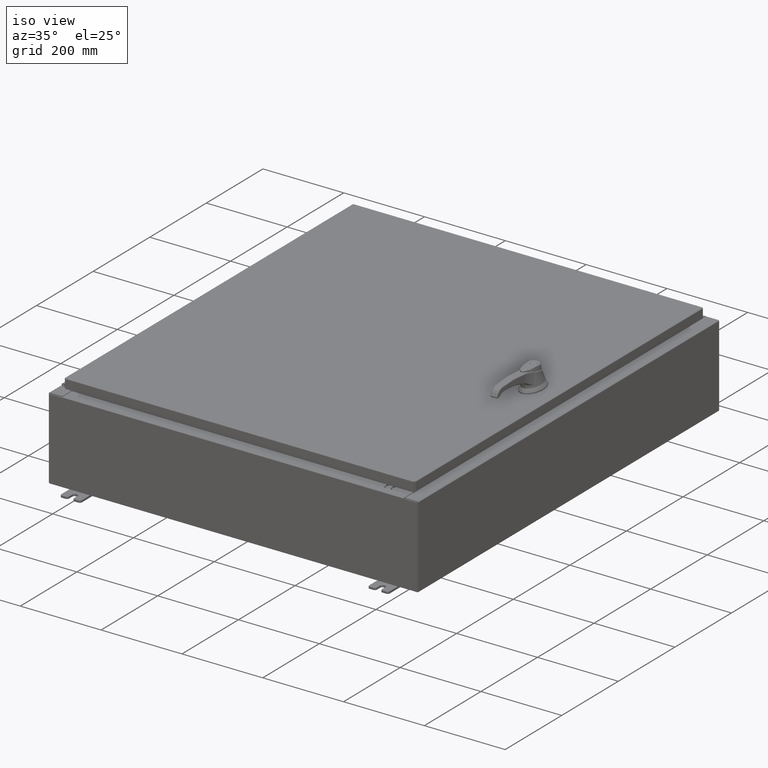
[diagram: clean part render]
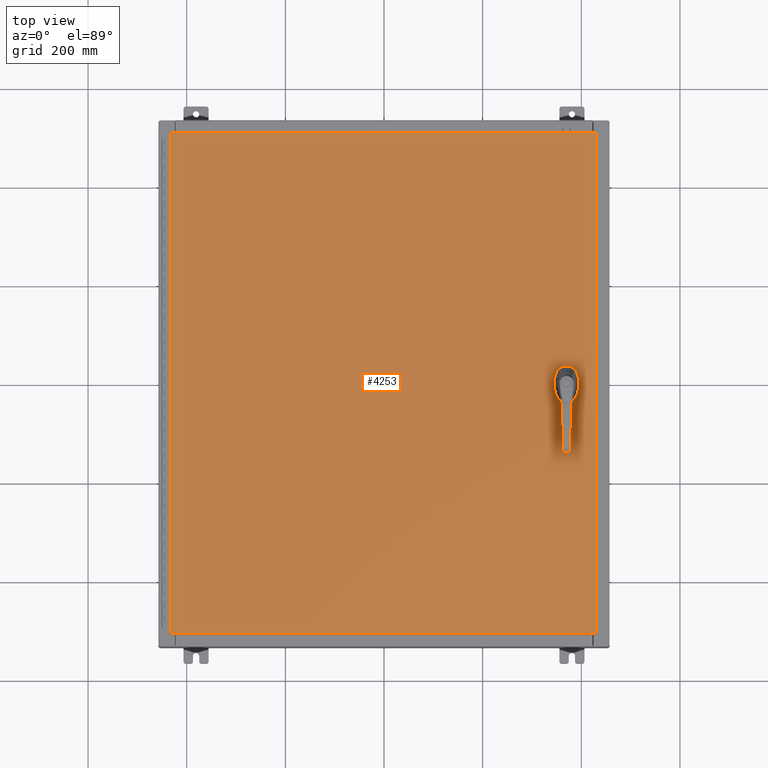
[diagram: tour spotlight — one face highlighted and labeled with its STEP entity id]
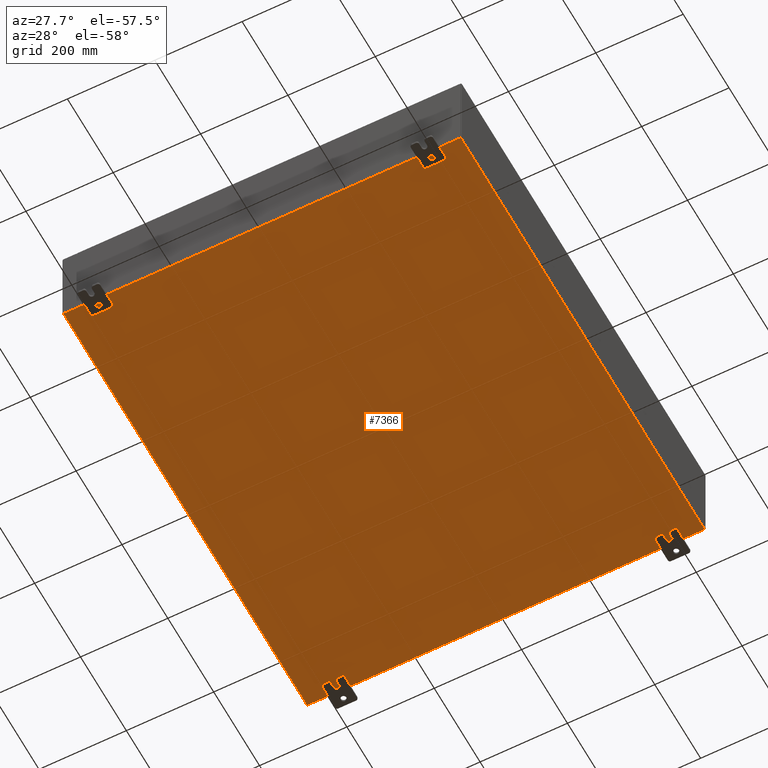
[diagram: tour spotlight — one face highlighted and labeled with its STEP entity id]
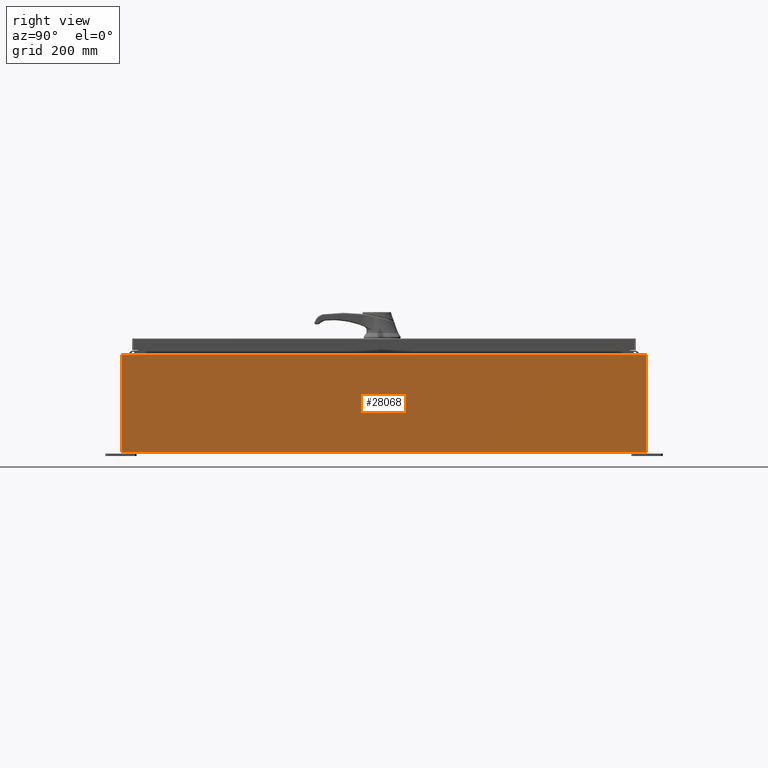
[diagram: tour spotlight — one face highlighted and labeled with its STEP entity id]
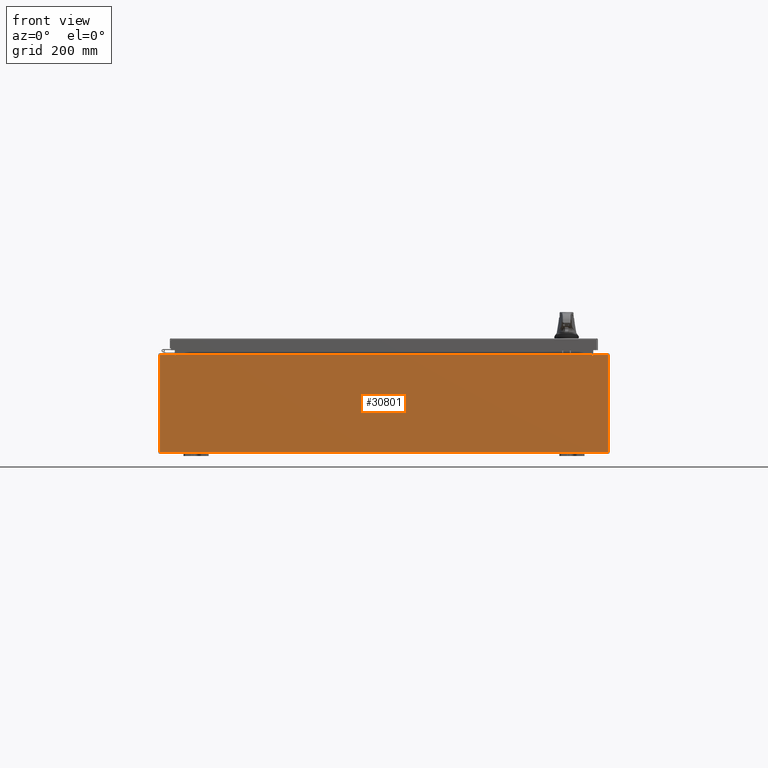
[diagram: tour spotlight — one face highlighted and labeled with its STEP entity id]
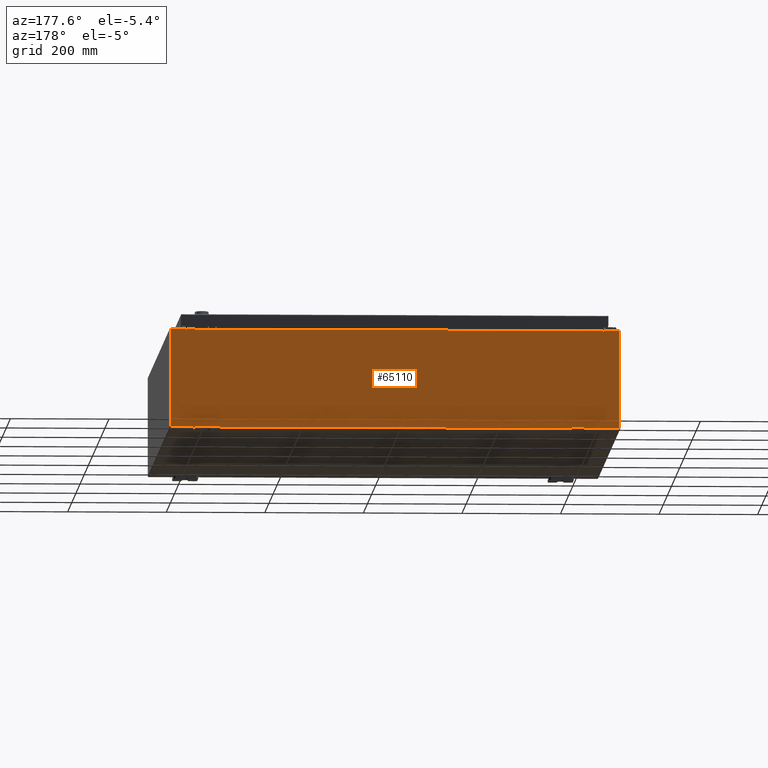
[diagram: tour spotlight — one face highlighted and labeled with its STEP entity id]
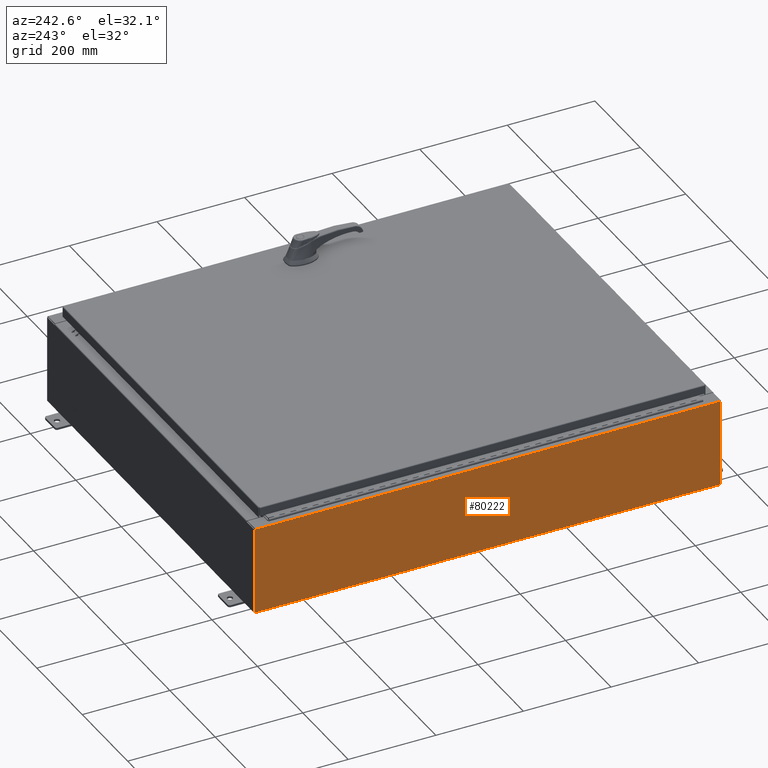
[diagram: tour spotlight — one face highlighted and labeled with its STEP entity id]
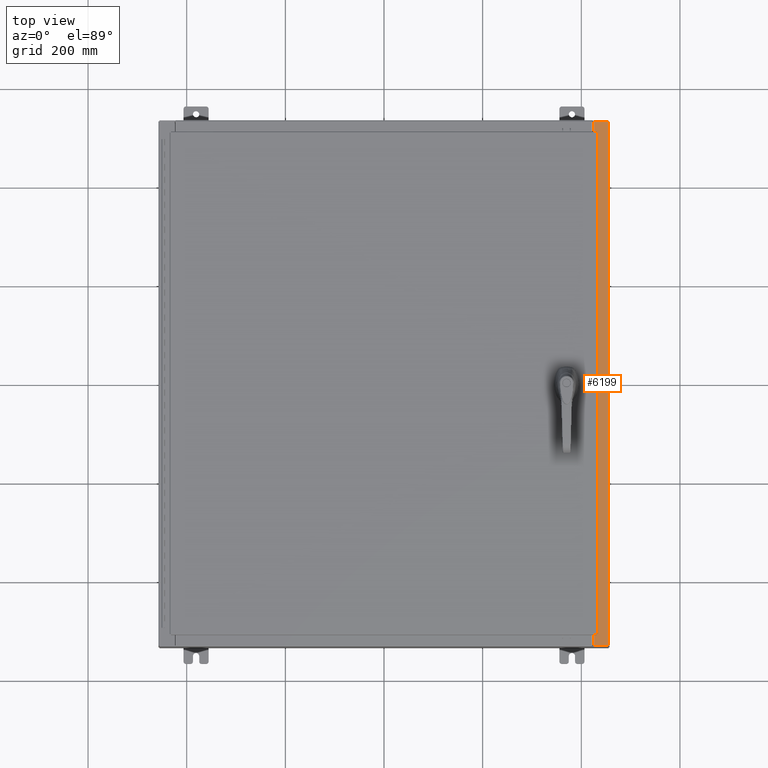
[diagram: tour spotlight — one face highlighted and labeled with its STEP entity id]
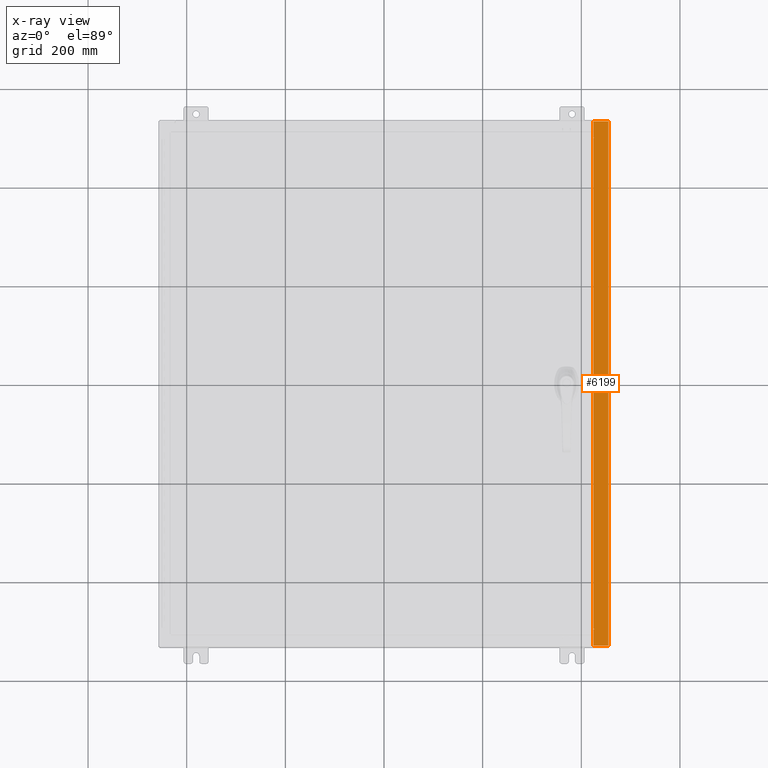
[diagram: x-ray of the same camera — body ghosted, this tour face saturated]
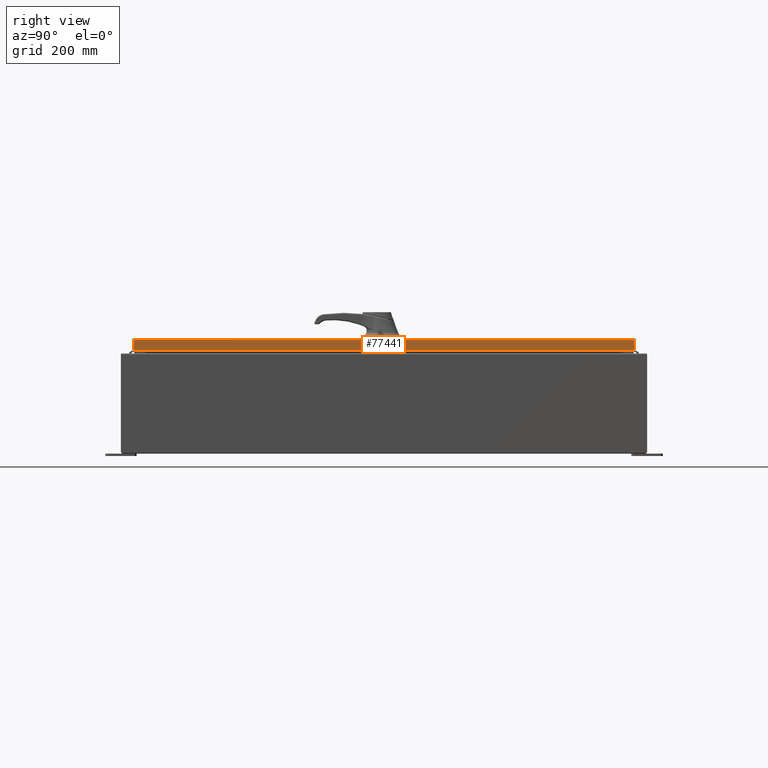
[diagram: tour spotlight — one face highlighted and labeled with its STEP entity id]
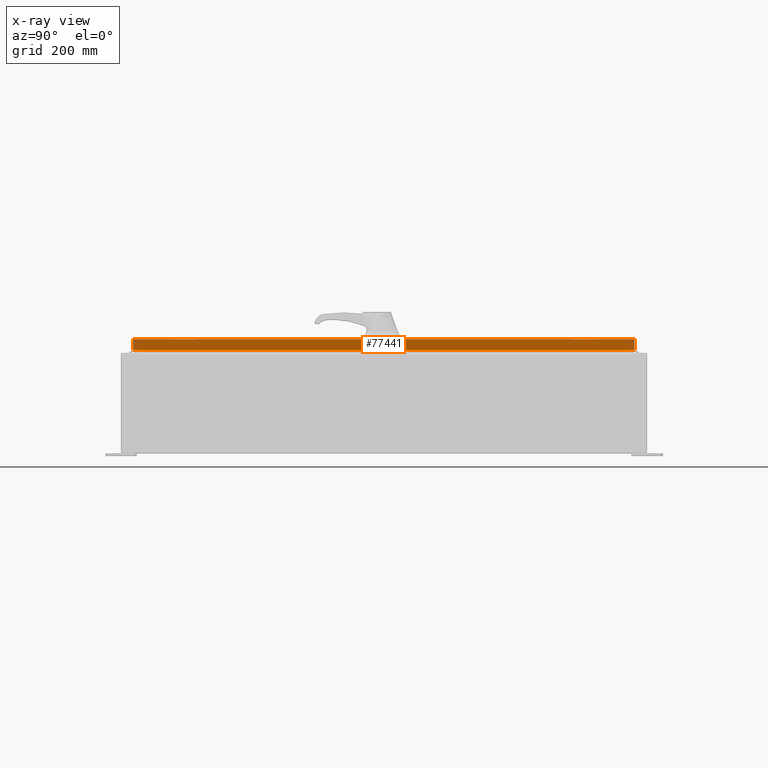
[diagram: x-ray of the same camera — body ghosted, this tour face saturated]
A machine part: a face-by-face anatomy tour. The part has 3256 B-rep faces; the first image is the clean iso view, then the 8 largest visible faces are spotlighted one at a time (largest first), each with its STEP entity span.

Face 1 — top view, entity #4253. In plain terms, the highlighted planar face has unit normal (0, 0, -1).
Definition (entity closure, byte-faithful):
#34 = EDGE_CURVE ( 'NONE', #32935, #111024, #85391, .T. ) ;
#763 = ORIENTED_EDGE ( 'NONE', *, *, #20080, .F. ) ;
#1190 = ORIENTED_EDGE ( 'NONE', *, *, #106437, .F. ) ;
#1475 = EDGE_CURVE ( 'NONE', #105507, #114035, #94595, .T. ) ;
#1832 = DIRECTION ( 'NONE',  ( 5.457491617345625800E-015, -1.000000000000000000, 0.0000000000000000000 ) ) ;
#2606 = CARTESIAN_POINT ( 'NONE',  ( 14.57799999999999900, -1.338000000000000100, 0.0000000000000000000 ) ) ;
#3102 = EDGE_CURVE ( 'NONE', #111024, #32935, #44103, .T. ) ;
#4253 = ADVANCED_FACE ( 'NONE', ( #12657, #89446, #65841 ), #20749, .F. ) ;
#4320 = DIRECTION ( 'NONE',  ( 1.000000000000000000, 0.0000000000000000000, 0.0000000000000000000 ) ) ;
#5093 = CARTESIAN_POINT ( 'NONE',  ( 16.99029999999999800, 20.00630000000000700, 1.946441695485787500E-015 ) ) ;
#5132 = VECTOR ( 'NONE', #118804, 39.37007874015748100 ) ;
#5214 = EDGE_CURVE ( 'NONE', #63363, #105507, #89325, .T. ) ;
#5501 = AXIS2_PLACEMENT_3D ( 'NONE', #108261, #105364, #108395 ) ;
#5769 = CARTESIAN_POINT ( 'NONE',  ( 14.98099999999992700, 0.2002273707563075900, 0.0000000000000000000 ) ) ;
#9299 = EDGE_CURVE ( 'NONE', #87163, #21568, #81506, .T. ) ;
#9920 = CARTESIAN_POINT ( 'NONE',  ( 14.57799999999999900, 0.0000000000000000000, 0.0000000000000000000 ) ) ;
#10114 = CARTESIAN_POINT ( 'NONE',  ( 14.57799999999999900, 0.0000000000000000000, 0.0000000000000000000 ) ) ;
#12657 = FACE_BOUND ( 'NONE', #43273, .T. ) ;
#17304 = CARTESIAN_POINT ( 'NONE',  ( 16.99029999999999800, -20.00630000000000300, -2.048885995248197400E-016 ) ) ;
#18784 = CARTESIAN_POINT ( 'NONE',  ( 14.98099999999992900, -0.2002273707563079800, 0.0000000000000000000 ) ) ;
#18921 = CARTESIAN_POINT ( 'NONE',  ( 14.17500000000007400, 0.0000000000000000000, 0.0000000000000000000 ) ) ;
#19289 = CARTESIAN_POINT ( 'NONE',  ( 14.77822737075630900, 0.4029999999999252000, 0.0000000000000000000 ) ) ;
#20014 = DIRECTION ( 'NONE',  ( 1.000000000000000000, 0.0000000000000000000, 0.0000000000000000000 ) ) ;
#20080 = EDGE_CURVE ( 'NONE', #97216, #93975, #84766, .T. ) ;
#20198 = DIRECTION ( 'NONE',  ( 1.000000000000000000, 0.0000000000000000000, 0.0000000000000000000 ) ) ;
#20338 = CIRCLE ( 'NONE', #33373, 0.4499999999999168000 ) ;
#20749 = PLANE ( 'NONE',  #121439 ) ;
#21568 = VERTEX_POINT ( 'NONE', #18784 ) ;
#21850 = DIRECTION ( 'NONE',  ( -1.000000000000000000, -0.0000000000000000000, -0.0000000000000000000 ) ) ;
#24185 = ORIENTED_EDGE ( 'NONE', *, *, #3102, .F. ) ;
#26038 = CARTESIAN_POINT ( 'NONE',  ( 14.57799999999999900, 0.0000000000000000000, 0.0000000000000000000 ) ) ;
#26239 = ORIENTED_EDGE ( 'NONE', *, *, #70635, .F. ) ;
#28818 = AXIS2_PLACEMENT_3D ( 'NONE', #10114, #80204, #20198 ) ;
#31740 = LINE ( 'NONE', #18921, #5132 ) ;
#32449 = DIRECTION ( 'NONE',  ( -1.000000000000000000, 0.0000000000000000000, -0.0000000000000000000 ) ) ;
#32935 = VERTEX_POINT ( 'NONE', #69470 ) ;
#33373 = AXIS2_PLACEMENT_3D ( 'NONE', #9920, #80013, #20014 ) ;
#36018 = DIRECTION ( 'NONE',  ( 1.000000000000000000, 0.0000000000000000000, 0.0000000000000000000 ) ) ;
#41219 = VERTEX_POINT ( 'NONE', #127736 ) ;
#42026 = CARTESIAN_POINT ( 'NONE',  ( 14.98099999999992700, 8.175868191945441800E-014, 0.0000000000000000000 ) ) ;
#43273 = EDGE_LOOP ( 'NONE', ( #99552, #24185 ) ) ;
#43701 = ORIENTED_EDGE ( 'NONE', *, *, #128566, .F. ) ;
#44103 = CIRCLE ( 'NONE', #5501, 0.1715000000000011500 ) ;
#45417 = EDGE_CURVE ( 'NONE', #129740, #59123, #31740, .T. ) ;
#46111 = LINE ( 'NONE', #93769, #123095 ) ;
#46993 = EDGE_CURVE ( 'NONE', #87163, #87293, #108364, .T. ) ;
#47634 = DIRECTION ( 'NONE',  ( -0.0000000000000000000, 0.0000000000000000000, 1.000000000000000000 ) ) ;
#55889 = LINE ( 'NONE', #71259, #106225 ) ;
#56452 = CARTESIAN_POINT ( 'NONE',  ( 14.57799999999999900, 0.0000000000000000000, 0.0000000000000000000 ) ) ;
#57817 = DIRECTION ( 'NONE',  ( 0.0000000000000000000, 0.0000000000000000000, -1.000000000000000000 ) ) ;
#58772 = ORIENTED_EDGE ( 'NONE', *, *, #46993, .F. ) ;
#58873 = VERTEX_POINT ( 'NONE', #112303 ) ;
#59123 = VERTEX_POINT ( 'NONE', #115258 ) ;
#63363 = VERTEX_POINT ( 'NONE', #101332 ) ;
#65841 = FACE_BOUND ( 'NONE', #130016, .T. ) ;
#66583 = DIRECTION ( 'NONE',  ( 1.000000000000000000, 0.0000000000000000000, 0.0000000000000000000 ) ) ;
#66795 = CARTESIAN_POINT ( 'NONE',  ( 0.0000000000000000000, 0.0000000000000000000, 0.0000000000000000000 ) ) ;
#67836 = DIRECTION ( 'NONE',  ( 1.000000000000000000, -0.0000000000000000000, -0.0000000000000000000 ) ) ;
#69470 = CARTESIAN_POINT ( 'NONE',  ( 14.74950000000000100, -1.338000000000000100, 0.0000000000000000000 ) ) ;
#70635 = EDGE_CURVE ( 'NONE', #59123, #97216, #127669, .T. ) ;
#71259 = CARTESIAN_POINT ( 'NONE',  ( 16.99029999999999800, 20.00630000000000700, 1.946441695485787500E-015 ) ) ;
#72222 = EDGE_CURVE ( 'NONE', #58873, #129740, #105647, .T. ) ;
#73279 = ORIENTED_EDGE ( 'NONE', *, *, #122190, .T. ) ;
#75737 = DIRECTION ( 'NONE',  ( 1.000000000000000000, 0.0000000000000000000, 0.0000000000000000000 ) ) ;
#79419 = CARTESIAN_POINT ( 'NONE',  ( -16.99029999999999800, -20.00630000000000700, 1.946441695485787500E-015 ) ) ;
#80013 = DIRECTION ( 'NONE',  ( -0.0000000000000000000, 0.0000000000000000000, 1.000000000000000000 ) ) ;
#80204 = DIRECTION ( 'NONE',  ( -0.0000000000000000000, 0.0000000000000000000, 1.000000000000000000 ) ) ;
#81506 = LINE ( 'NONE', #42026, #105040 ) ;
#81656 = VECTOR ( 'NONE', #75737, 39.37007874015748100 ) ;
#82152 = ORIENTED_EDGE ( 'NONE', *, *, #9299, .T. ) ;
#82198 = CARTESIAN_POINT ( 'NONE',  ( 0.0000000000000000000, 0.4029999999999252000, 0.0000000000000000000 ) ) ;
#83588 = VECTOR ( 'NONE', #92318, 39.37007874015748100 ) ;
#83744 = ORIENTED_EDGE ( 'NONE', *, *, #5214, .T. ) ;
#83941 = CARTESIAN_POINT ( 'NONE',  ( 14.40649999999999800, -1.338000000000000100, 0.0000000000000000000 ) ) ;
#84030 = EDGE_CURVE ( 'NONE', #114035, #41219, #55889, .T. ) ;
#84766 = LINE ( 'NONE', #125790, #81656 ) ;
#85391 = CIRCLE ( 'NONE', #126239, 0.1715000000000011500 ) ;
#85775 = CARTESIAN_POINT ( 'NONE',  ( 14.17500000000007400, 0.2002273707563079800, 0.0000000000000000000 ) ) ;
#86177 = VECTOR ( 'NONE', #67836, 39.37007874015748100 ) ;
#86742 = LINE ( 'NONE', #82198, #83588 ) ;
#87120 = CARTESIAN_POINT ( 'NONE',  ( 14.37777262924369000, -0.4029999999999252000, 0.0000000000000000000 ) ) ;
#87163 = VERTEX_POINT ( 'NONE', #5769 ) ;
#87293 = VERTEX_POINT ( 'NONE', #19289 ) ;
#89325 = LINE ( 'NONE', #79419, #86177 ) ;
#89446 = FACE_OUTER_BOUND ( 'NONE', #98514, .T. ) ;
#92318 = DIRECTION ( 'NONE',  ( -1.000000000000000000, 0.0000000000000000000, 0.0000000000000000000 ) ) ;
#93769 = CARTESIAN_POINT ( 'NONE',  ( -16.99029999999998400, 20.00630000000000300, -2.048885995248197400E-016 ) ) ;
#93975 = VERTEX_POINT ( 'NONE', #118550 ) ;
#94595 = LINE ( 'NONE', #17304, #118110 ) ;
#96096 = DIRECTION ( 'NONE',  ( -0.0000000000000000000, 0.0000000000000000000, 1.000000000000000000 ) ) ;
#97216 = VERTEX_POINT ( 'NONE', #87120 ) ;
#98514 = EDGE_LOOP ( 'NONE', ( #83744, #114052, #113537, #73279 ) ) ;
#99552 = ORIENTED_EDGE ( 'NONE', *, *, #34, .F. ) ;
#101332 = CARTESIAN_POINT ( 'NONE',  ( -16.99029999999999800, -20.00630000000000700, 1.946441695485787500E-015 ) ) ;
#103845 = DIRECTION ( 'NONE',  ( 0.0000000000000000000, -1.000000000000000000, 0.0000000000000000000 ) ) ;
#105040 = VECTOR ( 'NONE', #1832, 39.37007874015748100 ) ;
#105364 = DIRECTION ( 'NONE',  ( -0.0000000000000000000, 0.0000000000000000000, 1.000000000000000000 ) ) ;
#105507 = VERTEX_POINT ( 'NONE', #128595 ) ;
#105647 = CIRCLE ( 'NONE', #108709, 0.4499999999999168000 ) ;
#106225 = VECTOR ( 'NONE', #21850, 39.37007874015748100 ) ;
#106437 = EDGE_CURVE ( 'NONE', #93975, #21568, #20338, .T. ) ;
#108261 = CARTESIAN_POINT ( 'NONE',  ( 14.57799999999999900, -1.338000000000000100, 0.0000000000000000000 ) ) ;
#108364 = CIRCLE ( 'NONE', #115651, 0.4499999999999168000 ) ;
#108395 = DIRECTION ( 'NONE',  ( 1.000000000000000000, 0.0000000000000000000, 0.0000000000000000000 ) ) ;
#108709 = AXIS2_PLACEMENT_3D ( 'NONE', #56452, #126770, #66583 ) ;
#109879 = DIRECTION ( 'NONE',  ( 0.0000000000000000000, 1.000000000000000000, 0.0000000000000000000 ) ) ;
#111024 = VERTEX_POINT ( 'NONE', #83941 ) ;
#112303 = CARTESIAN_POINT ( 'NONE',  ( 14.37777262924369000, 0.4029999999999252000, 0.0000000000000000000 ) ) ;
#113537 = ORIENTED_EDGE ( 'NONE', *, *, #84030, .T. ) ;
#114035 = VERTEX_POINT ( 'NONE', #5093 ) ;
#114052 = ORIENTED_EDGE ( 'NONE', *, *, #1475, .T. ) ;
#115258 = CARTESIAN_POINT ( 'NONE',  ( 14.17500000000007400, -0.2002273707563079800, 0.0000000000000000000 ) ) ;
#115651 = AXIS2_PLACEMENT_3D ( 'NONE', #26038, #96096, #36018 ) ;
#116894 = ORIENTED_EDGE ( 'NONE', *, *, #45417, .F. ) ;
#118110 = VECTOR ( 'NONE', #109879, 39.37007874015748100 ) ;
#118550 = CARTESIAN_POINT ( 'NONE',  ( 14.77822737075630900, -0.4029999999999252000, 0.0000000000000000000 ) ) ;
#118804 = DIRECTION ( 'NONE',  ( 0.0000000000000000000, -1.000000000000000000, 0.0000000000000000000 ) ) ;
#121439 = AXIS2_PLACEMENT_3D ( 'NONE', #66795, #57817, #32449 ) ;
#122190 = EDGE_CURVE ( 'NONE', #41219, #63363, #46111, .T. ) ;
#123095 = VECTOR ( 'NONE', #103845, 39.37007874015748100 ) ;
#125563 = ORIENTED_EDGE ( 'NONE', *, *, #72222, .F. ) ;
#125790 = CARTESIAN_POINT ( 'NONE',  ( 0.0000000000000000000, -0.4029999999999252000, 0.0000000000000000000 ) ) ;
#126239 = AXIS2_PLACEMENT_3D ( 'NONE', #2606, #47634, #4320 ) ;
#126770 = DIRECTION ( 'NONE',  ( -0.0000000000000000000, 0.0000000000000000000, 1.000000000000000000 ) ) ;
#127669 = CIRCLE ( 'NONE', #28818, 0.4499999999999168000 ) ;
#127736 = CARTESIAN_POINT ( 'NONE',  ( -16.99029999999998400, 20.00630000000000300, -2.048885995248197400E-016 ) ) ;
#128566 = EDGE_CURVE ( 'NONE', #87293, #58873, #86742, .T. ) ;
#128595 = CARTESIAN_POINT ( 'NONE',  ( 16.99029999999999800, -20.00630000000000300, -2.048885995248197400E-016 ) ) ;
#129740 = VERTEX_POINT ( 'NONE', #85775 ) ;
#130016 = EDGE_LOOP ( 'NONE', ( #82152, #1190, #763, #26239, #116894, #125563, #43701, #58772 ) ) ;

Face 2 — auxiliary view, entity #7366. In plain terms, the highlighted planar face has unit normal (0, 0, -1).
Definition (entity closure, byte-faithful):
#1297 = LINE ( 'NONE', #105372, #104745 ) ;
#4440 = DIRECTION ( 'NONE',  ( -1.000000000000000000, -0.0000000000000000000, -0.0000000000000000000 ) ) ;
#4904 = EDGE_CURVE ( 'NONE', #113544, #122018, #25123, .T. ) ;
#7366 = ADVANCED_FACE ( 'NONE', ( #83352 ), #66226, .T. ) ;
#9109 = CARTESIAN_POINT ( 'NONE',  ( 17.91230000000000200, 20.92529999999998900, -0.07469999999999994700 ) ) ;
#15533 = CARTESIAN_POINT ( 'NONE',  ( -17.99999999999999600, -20.92530000000000400, -0.07470000000000000300 ) ) ;
#16409 = DIRECTION ( 'NONE',  ( -1.000000000000000000, 0.0000000000000000000, -0.0000000000000000000 ) ) ;
#22008 = VECTOR ( 'NONE', #30030, 39.37007874015748100 ) ;
#24525 = CARTESIAN_POINT ( 'NONE',  ( -17.91229999999999800, 20.92529999999999600, -0.07470000000000000300 ) ) ;
#24809 = AXIS2_PLACEMENT_3D ( 'NONE', #126418, #76400, #16409 ) ;
#25123 = LINE ( 'NONE', #15533, #22008 ) ;
#26635 = ORIENTED_EDGE ( 'NONE', *, *, #77237, .F. ) ;
#30030 = DIRECTION ( 'NONE',  ( 1.000000000000000000, -1.214154663850783700E-016, 0.0000000000000000000 ) ) ;
#31020 = EDGE_LOOP ( 'NONE', ( #119206, #118400, #26635, #51433 ) ) ;
#31130 = CARTESIAN_POINT ( 'NONE',  ( 17.91230000000000200, -20.92530000000000700, -0.07470000000000000300 ) ) ;
#35987 = CARTESIAN_POINT ( 'NONE',  ( 17.91230000000000200, 20.92529999999998600, -0.07469999999999994700 ) ) ;
#39734 = EDGE_CURVE ( 'NONE', #113544, #83525, #1297, .T. ) ;
#51433 = ORIENTED_EDGE ( 'NONE', *, *, #92431, .T. ) ;
#54221 = CARTESIAN_POINT ( 'NONE',  ( -17.99999999999999600, 20.92529999999999600, -0.07470000000000000300 ) ) ;
#54572 = LINE ( 'NONE', #54221, #78242 ) ;
#66226 = PLANE ( 'NONE',  #24809 ) ;
#67270 = CARTESIAN_POINT ( 'NONE',  ( -17.91229999999999800, -20.92529999999999300, -0.07469999999999994700 ) ) ;
#68196 = LINE ( 'NONE', #9109, #121646 ) ;
#76400 = DIRECTION ( 'NONE',  ( 0.0000000000000000000, 0.0000000000000000000, -1.000000000000000000 ) ) ;
#77237 = EDGE_CURVE ( 'NONE', #121161, #83525, #54572, .T. ) ;
#78242 = VECTOR ( 'NONE', #4440, 39.37007874015748100 ) ;
#79189 = DIRECTION ( 'NONE',  ( -0.0000000000000000000, -1.000000000000000000, -0.0000000000000000000 ) ) ;
#83352 = FACE_OUTER_BOUND ( 'NONE', #31020, .T. ) ;
#83525 = VERTEX_POINT ( 'NONE', #24525 ) ;
#92431 = EDGE_CURVE ( 'NONE', #121161, #122018, #68196, .T. ) ;
#104745 = VECTOR ( 'NONE', #125546, 39.37007874015748100 ) ;
#105372 = CARTESIAN_POINT ( 'NONE',  ( -17.91229999999999800, -20.92529999999999600, -0.07469999999999994700 ) ) ;
#113544 = VERTEX_POINT ( 'NONE', #67270 ) ;
#118400 = ORIENTED_EDGE ( 'NONE', *, *, #39734, .T. ) ;
#119206 = ORIENTED_EDGE ( 'NONE', *, *, #4904, .F. ) ;
#121161 = VERTEX_POINT ( 'NONE', #35987 ) ;
#121646 = VECTOR ( 'NONE', #79189, 39.37007874015748100 ) ;
#122018 = VERTEX_POINT ( 'NONE', #31130 ) ;
#125546 = DIRECTION ( 'NONE',  ( -0.0000000000000000000, 1.000000000000000000, -0.0000000000000000000 ) ) ;
#126418 = CARTESIAN_POINT ( 'NONE',  ( 0.0000000000000000000, 0.0000000000000000000, -0.07470000000000000300 ) ) ;

Face 3 — right view, entity #28068. In plain terms, the highlighted planar face has unit normal (-1, 0, 0).
Definition (entity closure, byte-faithful):
#1628 = VECTOR ( 'NONE', #15692, 39.37007874015748100 ) ;
#7128 = DIRECTION ( 'NONE',  ( 3.584876173029202900E-015, 0.0000000000000000000, 1.000000000000000000 ) ) ;
#10911 = VECTOR ( 'NONE', #25268, 39.37007874015748100 ) ;
#14868 = CARTESIAN_POINT ( 'NONE',  ( 18.00000000000000400, 20.92529999999998600, 0.01299999999999984700 ) ) ;
#15692 = DIRECTION ( 'NONE',  ( -0.0000000000000000000, -1.000000000000000000, -0.0000000000000000000 ) ) ;
#17377 = FACE_OUTER_BOUND ( 'NONE', #127804, .T. ) ;
#25132 = LINE ( 'NONE', #85763, #1628 ) ;
#25268 = DIRECTION ( 'NONE',  ( -3.584876173029202900E-015, 0.0000000000000000000, -1.000000000000000000 ) ) ;
#28068 = ADVANCED_FACE ( 'NONE', ( #17377 ), #96896, .F. ) ;
#28152 = DIRECTION ( 'NONE',  ( 3.584876173029202900E-015, 0.0000000000000000000, 1.000000000000000000 ) ) ;
#31772 = EDGE_CURVE ( 'NONE', #65305, #63687, #55805, .T. ) ;
#35010 = CARTESIAN_POINT ( 'NONE',  ( 18.00000000000000400, -20.92529999999999600, 0.01299999999999983600 ) ) ;
#35876 = VECTOR ( 'NONE', #28152, 39.37007874015748100 ) ;
#40997 = ORIENTED_EDGE ( 'NONE', *, *, #47947, .T. ) ;
#46842 = CARTESIAN_POINT ( 'NONE',  ( 18.00000000000000400, 0.0000000000000000000, -6.478858477053724100E-014 ) ) ;
#47947 = EDGE_CURVE ( 'NONE', #114028, #92330, #25132, .T. ) ;
#50267 = EDGE_CURVE ( 'NONE', #65305, #114028, #62483, .T. ) ;
#55805 = LINE ( 'NONE', #123296, #109284 ) ;
#56400 = ORIENTED_EDGE ( 'NONE', *, *, #100121, .T. ) ;
#62483 = LINE ( 'NONE', #67950, #35876 ) ;
#63108 = DIRECTION ( 'NONE',  ( -0.0000000000000000000, -1.000000000000000000, -0.0000000000000000000 ) ) ;
#63687 = VERTEX_POINT ( 'NONE', #35010 ) ;
#65305 = VERTEX_POINT ( 'NONE', #14868 ) ;
#67033 = DIRECTION ( 'NONE',  ( -1.000000000000000000, 0.0000000000000000000, 3.584876173029202900E-015 ) ) ;
#67950 = CARTESIAN_POINT ( 'NONE',  ( 18.00000000000000400, 20.92529999999998900, -6.478858477053724100E-014 ) ) ;
#85763 = CARTESIAN_POINT ( 'NONE',  ( 18.00000000000002800, 20.92529999999997900, 7.837599999999999200 ) ) ;
#92330 = VERTEX_POINT ( 'NONE', #108167 ) ;
#95321 = CARTESIAN_POINT ( 'NONE',  ( 18.00000000000000400, -20.92529999999999600, -6.478858477053724100E-014 ) ) ;
#96896 = PLANE ( 'NONE',  #128016 ) ;
#100121 = EDGE_CURVE ( 'NONE', #92330, #63687, #114313, .T. ) ;
#108167 = CARTESIAN_POINT ( 'NONE',  ( 18.00000000000003200, -20.92529999999999600, 7.837599999999999200 ) ) ;
#109284 = VECTOR ( 'NONE', #63108, 39.37007874015748100 ) ;
#114028 = VERTEX_POINT ( 'NONE', #125161 ) ;
#114313 = LINE ( 'NONE', #95321, #10911 ) ;
#122754 = ORIENTED_EDGE ( 'NONE', *, *, #31772, .F. ) ;
#123296 = CARTESIAN_POINT ( 'NONE',  ( 18.00000000000000400, -20.92529999999999600, 0.01299999999999984700 ) ) ;
#125161 = CARTESIAN_POINT ( 'NONE',  ( 18.00000000000002800, 20.92529999999997500, 7.837599999999999200 ) ) ;
#125964 = ORIENTED_EDGE ( 'NONE', *, *, #50267, .T. ) ;
#127804 = EDGE_LOOP ( 'NONE', ( #40997, #56400, #122754, #125964 ) ) ;
#128016 = AXIS2_PLACEMENT_3D ( 'NONE', #46842, #67033, #7128 ) ;

Face 4 — front view, entity #30801. In plain terms, the highlighted planar face has unit normal (-0, 1, -0).
Definition (entity closure, byte-faithful):
#2119 = CARTESIAN_POINT ( 'NONE',  ( 16.63720000000000700, 0.0000000000000000000, 3.874950000000000100 ) ) ;
#2159 = LINE ( 'NONE', #64738, #52151 ) ;
#3394 = DIRECTION ( 'NONE',  ( 1.000000000000000000, 0.0000000000000000000, 0.0000000000000000000 ) ) ;
#3606 = CARTESIAN_POINT ( 'NONE',  ( 0.0000000000000000000, 0.0000000000000000000, 0.0000000000000000000 ) ) ;
#3928 = ORIENTED_EDGE ( 'NONE', *, *, #38324, .T. ) ;
#6477 = DIRECTION ( 'NONE',  ( -1.000000000000000000, -0.0000000000000000000, -0.0000000000000000000 ) ) ;
#6721 = CARTESIAN_POINT ( 'NONE',  ( 16.65587500000000500, 0.0000000000000000000, 3.874950000000000100 ) ) ;
#7099 = CARTESIAN_POINT ( 'NONE',  ( -16.63719999999999600, 3.756290991288361700E-016, 3.912300000000000100 ) ) ;
#7281 = AXIS2_PLACEMENT_3D ( 'NONE', #3606, #73624, #13667 ) ;
#7341 = LINE ( 'NONE', #51214, #84073 ) ;
#7635 = ORIENTED_EDGE ( 'NONE', *, *, #71329, .F. ) ;
#7743 = EDGE_CURVE ( 'NONE', #46651, #106861, #8115, .T. ) ;
#8115 = LINE ( 'NONE', #11096, #117826 ) ;
#8854 = EDGE_CURVE ( 'NONE', #100780, #54951, #32932, .T. ) ;
#11096 = CARTESIAN_POINT ( 'NONE',  ( -16.63719999999999600, -0.0000000000000000000, 0.0000000000000000000 ) ) ;
#12514 = ORIENTED_EDGE ( 'NONE', *, *, #118008, .T. ) ;
#12579 = CARTESIAN_POINT ( 'NONE',  ( 16.63720000000000700, 0.0000000000000000000, 0.0000000000000000000 ) ) ;
#13667 = DIRECTION ( 'NONE',  ( 0.0000000000000000000, -0.0000000000000000000, -1.000000000000000000 ) ) ;
#13933 = LINE ( 'NONE', #39546, #17091 ) ;
#16010 = VERTEX_POINT ( 'NONE', #105581 ) ;
#16181 = CARTESIAN_POINT ( 'NONE',  ( -16.67454999999999600, 0.0000000000000000000, 3.925300000000000500 ) ) ;
#16790 = DIRECTION ( 'NONE',  ( 0.0000000000000000000, 0.0000000000000000000, -1.000000000000000000 ) ) ;
#17091 = VECTOR ( 'NONE', #99648, 39.37007874015748100 ) ;
#17110 = VERTEX_POINT ( 'NONE', #16181 ) ;
#18872 = CARTESIAN_POINT ( 'NONE',  ( 17.92530000000000400, 0.0000000000000000000, 3.925300000000000500 ) ) ;
#18925 = EDGE_CURVE ( 'NONE', #34581, #16010, #53487, .T. ) ;
#21229 = ORIENTED_EDGE ( 'NONE', *, *, #81977, .F. ) ;
#24006 = DIRECTION ( 'NONE',  ( -8.681145560800009800E-014, 0.0000000000000000000, -1.000000000000000000 ) ) ;
#28773 = VECTOR ( 'NONE', #79472, 39.37007874015748100 ) ;
#29525 = CARTESIAN_POINT ( 'NONE',  ( -16.63719999999999600, 3.756290991288361700E-016, 3.912300000000000100 ) ) ;
#30045 = ORIENTED_EDGE ( 'NONE', *, *, #91422, .T. ) ;
#30273 = LINE ( 'NONE', #83927, #56796 ) ;
#30801 = ADVANCED_FACE ( 'NONE', ( #92170 ), #123683, .F. ) ;
#32932 = CIRCLE ( 'NONE', #77724, 0.01867499999999949400 ) ;
#33572 = EDGE_CURVE ( 'NONE', #54951, #37656, #115241, .T. ) ;
#34382 = EDGE_CURVE ( 'NONE', #16010, #82814, #2159, .T. ) ;
#34581 = VERTEX_POINT ( 'NONE', #78374 ) ;
#37248 = CARTESIAN_POINT ( 'NONE',  ( -16.65587499999999800, 0.0000000000000000000, 3.874950000000000100 ) ) ;
#37656 = VERTEX_POINT ( 'NONE', #44171 ) ;
#37900 = ORIENTED_EDGE ( 'NONE', *, *, #33572, .F. ) ;
#38324 = EDGE_CURVE ( 'NONE', #119611, #89111, #84559, .T. ) ;
#38812 = EDGE_CURVE ( 'NONE', #117372, #17110, #97051, .T. ) ;
#39546 = CARTESIAN_POINT ( 'NONE',  ( -17.92529999999999600, 0.0000000000000000000, 3.925300000000000500 ) ) ;
#44171 = CARTESIAN_POINT ( 'NONE',  ( 16.63720000000000700, 0.0000000000000000000, 3.912300000000000100 ) ) ;
#46651 = VERTEX_POINT ( 'NONE', #7099 ) ;
#47257 = DIRECTION ( 'NONE',  ( 0.0000000000000000000, 0.0000000000000000000, -1.000000000000000000 ) ) ;
#49672 = ORIENTED_EDGE ( 'NONE', *, *, #18925, .T. ) ;
#50577 = ORIENTED_EDGE ( 'NONE', *, *, #34382, .T. ) ;
#51214 = CARTESIAN_POINT ( 'NONE',  ( 17.92530000000000400, 0.0000000000000000000, 3.925300000000000500 ) ) ;
#52151 = VECTOR ( 'NONE', #85401, 39.37007874015748100 ) ;
#53487 = LINE ( 'NONE', #106354, #103804 ) ;
#54951 = VERTEX_POINT ( 'NONE', #2119 ) ;
#55249 = ORIENTED_EDGE ( 'NONE', *, *, #56664, .T. ) ;
#56664 = EDGE_CURVE ( 'NONE', #46651, #37656, #105632, .T. ) ;
#56796 = VECTOR ( 'NONE', #24006, 39.37007874015748100 ) ;
#61886 = VECTOR ( 'NONE', #62832, 39.37007874015748100 ) ;
#62074 = CARTESIAN_POINT ( 'NONE',  ( -16.67454999999999600, -0.0000000000000000000, 0.0000000000000000000 ) ) ;
#62832 = DIRECTION ( 'NONE',  ( 0.0000000000000000000, 0.0000000000000000000, 1.000000000000000000 ) ) ;
#64738 = CARTESIAN_POINT ( 'NONE',  ( -17.92529999999999600, 0.0000000000000000000, 3.925300000000000500 ) ) ;
#67197 = CARTESIAN_POINT ( 'NONE',  ( 16.67455000000001100, 0.0000000000000000000, 3.925300000000000500 ) ) ;
#70344 = VECTOR ( 'NONE', #122675, 39.37007874015748100 ) ;
#71329 = EDGE_CURVE ( 'NONE', #119611, #100780, #30273, .T. ) ;
#71693 = CARTESIAN_POINT ( 'NONE',  ( 16.67455000000000700, 0.0000000000000000000, 3.874950000000000100 ) ) ;
#73624 = DIRECTION ( 'NONE',  ( 0.0000000000000000000, -1.000000000000000000, 0.0000000000000000000 ) ) ;
#75197 = EDGE_LOOP ( 'NONE', ( #82211, #21229, #122260, #55249, #37900, #105108, #7635, #3928, #30045, #49672, #50577, #12514 ) ) ;
#75601 = AXIS2_PLACEMENT_3D ( 'NONE', #37248, #107446, #47257 ) ;
#76774 = DIRECTION ( 'NONE',  ( -0.0000000000000000000, 1.000000000000000000, -0.0000000000000000000 ) ) ;
#77518 = CARTESIAN_POINT ( 'NONE',  ( -16.67454999999999600, 0.0000000000000000000, 3.874950000000000100 ) ) ;
#77724 = AXIS2_PLACEMENT_3D ( 'NONE', #6721, #76774, #16790 ) ;
#78374 = CARTESIAN_POINT ( 'NONE',  ( 17.92530000000000400, 0.0000000000000000000, -3.925299999999999100 ) ) ;
#79472 = DIRECTION ( 'NONE',  ( 1.000000000000000000, 0.0000000000000000000, 0.0000000000000000000 ) ) ;
#81177 = DIRECTION ( 'NONE',  ( 0.0000000000000000000, 0.0000000000000000000, -1.000000000000000000 ) ) ;
#81977 = EDGE_CURVE ( 'NONE', #106861, #117372, #108128, .T. ) ;
#82211 = ORIENTED_EDGE ( 'NONE', *, *, #38812, .F. ) ;
#82814 = VERTEX_POINT ( 'NONE', #115000 ) ;
#83927 = CARTESIAN_POINT ( 'NONE',  ( 16.67454999999967000, -0.0000000000000000000, -1.447541957108349400E-012 ) ) ;
#84073 = VECTOR ( 'NONE', #122317, 39.37007874015748100 ) ;
#84559 = LINE ( 'NONE', #123461, #128560 ) ;
#85401 = DIRECTION ( 'NONE',  ( -0.0000000000000000000, -0.0000000000000000000, 1.000000000000000000 ) ) ;
#89111 = VERTEX_POINT ( 'NONE', #18872 ) ;
#91422 = EDGE_CURVE ( 'NONE', #89111, #34581, #7341, .T. ) ;
#92170 = FACE_OUTER_BOUND ( 'NONE', #75197, .T. ) ;
#97051 = LINE ( 'NONE', #62074, #70344 ) ;
#99648 = DIRECTION ( 'NONE',  ( 1.000000000000000000, 0.0000000000000000000, 0.0000000000000000000 ) ) ;
#100780 = VERTEX_POINT ( 'NONE', #71693 ) ;
#103804 = VECTOR ( 'NONE', #6477, 39.37007874015748100 ) ;
#105108 = ORIENTED_EDGE ( 'NONE', *, *, #8854, .F. ) ;
#105581 = CARTESIAN_POINT ( 'NONE',  ( -17.92529999999999600, 0.0000000000000000000, -3.925299999999999100 ) ) ;
#105632 = LINE ( 'NONE', #29525, #28773 ) ;
#106354 = CARTESIAN_POINT ( 'NONE',  ( -17.92529999999999600, 0.0000000000000000000, -3.925299999999999100 ) ) ;
#106861 = VERTEX_POINT ( 'NONE', #115539 ) ;
#107446 = DIRECTION ( 'NONE',  ( -0.0000000000000000000, 1.000000000000000000, -0.0000000000000000000 ) ) ;
#108128 = CIRCLE ( 'NONE', #75601, 0.01867499999999949400 ) ;
#115000 = CARTESIAN_POINT ( 'NONE',  ( -17.92529999999999600, 0.0000000000000000000, 3.925300000000000500 ) ) ;
#115241 = LINE ( 'NONE', #12579, #61886 ) ;
#115539 = CARTESIAN_POINT ( 'NONE',  ( -16.63719999999999600, -0.0000000000000000000, 3.874950000000000100 ) ) ;
#117372 = VERTEX_POINT ( 'NONE', #77518 ) ;
#117826 = VECTOR ( 'NONE', #81177, 39.37007874015748100 ) ;
#118008 = EDGE_CURVE ( 'NONE', #82814, #17110, #13933, .T. ) ;
#119611 = VERTEX_POINT ( 'NONE', #67197 ) ;
#122260 = ORIENTED_EDGE ( 'NONE', *, *, #7743, .F. ) ;
#122317 = DIRECTION ( 'NONE',  ( 0.0000000000000000000, 0.0000000000000000000, -1.000000000000000000 ) ) ;
#122675 = DIRECTION ( 'NONE',  ( 0.0000000000000000000, 0.0000000000000000000, 1.000000000000000000 ) ) ;
#123461 = CARTESIAN_POINT ( 'NONE',  ( -17.92529999999999600, 0.0000000000000000000, 3.925300000000000500 ) ) ;
#123683 = PLANE ( 'NONE',  #7281 ) ;
#128560 = VECTOR ( 'NONE', #3394, 39.37007874015748100 ) ;

Face 5 — auxiliary view, entity #65110. In plain terms, the highlighted planar face has unit normal (0, -1, 0).
Definition (entity closure, byte-faithful):
#338 = DIRECTION ( 'NONE',  ( -0.0000000000000000000, 1.000000000000000000, -0.0000000000000000000 ) ) ;
#2713 = DIRECTION ( 'NONE',  ( 0.0000000000000000000, 0.0000000000000000000, 1.000000000000000000 ) ) ;
#6734 = ORIENTED_EDGE ( 'NONE', *, *, #83885, .F. ) ;
#8189 = EDGE_CURVE ( 'NONE', #57939, #29274, #106807, .T. ) ;
#9080 = ORIENTED_EDGE ( 'NONE', *, *, #46113, .T. ) ;
#13396 = VERTEX_POINT ( 'NONE', #76968 ) ;
#13533 = DIRECTION ( 'NONE',  ( 1.000000000000000000, 0.0000000000000000000, 0.0000000000000000000 ) ) ;
#15779 = EDGE_CURVE ( 'NONE', #13396, #67532, #79159, .T. ) ;
#17105 = LINE ( 'NONE', #32422, #120595 ) ;
#18605 = CARTESIAN_POINT ( 'NONE',  ( -17.92529999999999600, 0.0000000000000000000, 3.925300000000000500 ) ) ;
#22602 = DIRECTION ( 'NONE',  ( 0.0000000000000000000, 0.0000000000000000000, -1.000000000000000000 ) ) ;
#25780 = LINE ( 'NONE', #43993, #102598 ) ;
#26728 = VECTOR ( 'NONE', #98730, 39.37007874015748100 ) ;
#27118 = VERTEX_POINT ( 'NONE', #37389 ) ;
#29274 = VERTEX_POINT ( 'NONE', #67502 ) ;
#29400 = ORIENTED_EDGE ( 'NONE', *, *, #8189, .F. ) ;
#30274 = CARTESIAN_POINT ( 'NONE',  ( 16.63720000000000700, 0.0000000000000000000, 3.912300000000000100 ) ) ;
#31948 = PLANE ( 'NONE',  #65512 ) ;
#32422 = CARTESIAN_POINT ( 'NONE',  ( 16.63720000000000700, 0.0000000000000000000, 0.0000000000000000000 ) ) ;
#33630 = CARTESIAN_POINT ( 'NONE',  ( -16.63719999999999600, 3.756290991288361700E-016, 3.912300000000000100 ) ) ;
#34472 = LINE ( 'NONE', #33630, #87832 ) ;
#36209 = AXIS2_PLACEMENT_3D ( 'NONE', #40145, #110353, #50196 ) ;
#37389 = CARTESIAN_POINT ( 'NONE',  ( -16.67454999999999600, 0.0000000000000000000, 3.925300000000000500 ) ) ;
#39853 = AXIS2_PLACEMENT_3D ( 'NONE', #60225, #338, #70360 ) ;
#40145 = CARTESIAN_POINT ( 'NONE',  ( 16.65587500000000500, 0.0000000000000000000, 3.874950000000000100 ) ) ;
#41274 = DIRECTION ( 'NONE',  ( -0.0000000000000000000, -0.0000000000000000000, 1.000000000000000000 ) ) ;
#41413 = VERTEX_POINT ( 'NONE', #30274 ) ;
#41988 = CARTESIAN_POINT ( 'NONE',  ( 0.0000000000000000000, 0.0000000000000000000, 0.0000000000000000000 ) ) ;
#43791 = EDGE_LOOP ( 'NONE', ( #115887, #29400, #46321, #63237, #113188, #6734, #48059, #50726, #64386, #49837, #51960, #9080 ) ) ;
#43993 = CARTESIAN_POINT ( 'NONE',  ( 16.67454999999967000, -0.0000000000000000000, -1.447541957108349400E-012 ) ) ;
#46113 = EDGE_CURVE ( 'NONE', #127212, #27118, #88069, .T. ) ;
#46321 = ORIENTED_EDGE ( 'NONE', *, *, #127318, .F. ) ;
#46899 = CARTESIAN_POINT ( 'NONE',  ( -17.92529999999999600, 0.0000000000000000000, 3.925300000000000500 ) ) ;
#47135 = EDGE_CURVE ( 'NONE', #54736, #129800, #75347, .T. ) ;
#47772 = EDGE_CURVE ( 'NONE', #73472, #41413, #34472, .T. ) ;
#48059 = ORIENTED_EDGE ( 'NONE', *, *, #122943, .F. ) ;
#49286 = CARTESIAN_POINT ( 'NONE',  ( 16.63720000000000700, 0.0000000000000000000, 3.874950000000000100 ) ) ;
#49689 = CARTESIAN_POINT ( 'NONE',  ( -16.63719999999999600, -0.0000000000000000000, 3.874950000000000100 ) ) ;
#49726 = LINE ( 'NONE', #101408, #73273 ) ;
#49837 = ORIENTED_EDGE ( 'NONE', *, *, #15779, .T. ) ;
#50196 = DIRECTION ( 'NONE',  ( 0.0000000000000000000, 0.0000000000000000000, -1.000000000000000000 ) ) ;
#50586 = EDGE_CURVE ( 'NONE', #92477, #41413, #17105, .T. ) ;
#50726 = ORIENTED_EDGE ( 'NONE', *, *, #47135, .T. ) ;
#51208 = DIRECTION ( 'NONE',  ( -1.000000000000000000, -0.0000000000000000000, -0.0000000000000000000 ) ) ;
#51960 = ORIENTED_EDGE ( 'NONE', *, *, #78496, .T. ) ;
#52010 = DIRECTION ( 'NONE',  ( 0.0000000000000000000, -0.0000000000000000000, -1.000000000000000000 ) ) ;
#52216 = CARTESIAN_POINT ( 'NONE',  ( 17.92530000000000400, 0.0000000000000000000, 3.925300000000000500 ) ) ;
#54736 = VERTEX_POINT ( 'NONE', #89176 ) ;
#56464 = VERTEX_POINT ( 'NONE', #81371 ) ;
#57939 = VERTEX_POINT ( 'NONE', #49689 ) ;
#58714 = CARTESIAN_POINT ( 'NONE',  ( -16.67454999999999600, -0.0000000000000000000, 0.0000000000000000000 ) ) ;
#60225 = CARTESIAN_POINT ( 'NONE',  ( -16.65587499999999800, 0.0000000000000000000, 3.874950000000000100 ) ) ;
#60430 = LINE ( 'NONE', #52216, #110740 ) ;
#63237 = ORIENTED_EDGE ( 'NONE', *, *, #47772, .T. ) ;
#64386 = ORIENTED_EDGE ( 'NONE', *, *, #109804, .T. ) ;
#65110 = ADVANCED_FACE ( 'NONE', ( #70022 ), #31948, .F. ) ;
#65512 = AXIS2_PLACEMENT_3D ( 'NONE', #41988, #112173, #52010 ) ;
#67502 = CARTESIAN_POINT ( 'NONE',  ( -16.67454999999999600, 0.0000000000000000000, 3.874950000000000100 ) ) ;
#67532 = VERTEX_POINT ( 'NONE', #102303 ) ;
#68086 = LINE ( 'NONE', #129911, #115128 ) ;
#68543 = CIRCLE ( 'NONE', #36209, 0.01867499999999949400 ) ;
#70022 = FACE_OUTER_BOUND ( 'NONE', #43791, .T. ) ;
#70360 = DIRECTION ( 'NONE',  ( 0.0000000000000000000, 0.0000000000000000000, -1.000000000000000000 ) ) ;
#73273 = VECTOR ( 'NONE', #41274, 39.37007874015748100 ) ;
#73472 = VERTEX_POINT ( 'NONE', #78124 ) ;
#75347 = LINE ( 'NONE', #46899, #125604 ) ;
#76968 = CARTESIAN_POINT ( 'NONE',  ( 17.92530000000000400, 0.0000000000000000000, -3.925299999999999100 ) ) ;
#78124 = CARTESIAN_POINT ( 'NONE',  ( -16.63719999999999600, 3.756290991288361700E-016, 3.912300000000000100 ) ) ;
#78496 = EDGE_CURVE ( 'NONE', #67532, #127212, #49726, .T. ) ;
#79159 = LINE ( 'NONE', #111356, #126221 ) ;
#79900 = DIRECTION ( 'NONE',  ( 0.0000000000000000000, 0.0000000000000000000, -1.000000000000000000 ) ) ;
#81371 = CARTESIAN_POINT ( 'NONE',  ( 16.67455000000000700, 0.0000000000000000000, 3.874950000000000100 ) ) ;
#83140 = LINE ( 'NONE', #58714, #26728 ) ;
#83885 = EDGE_CURVE ( 'NONE', #56464, #92477, #68543, .T. ) ;
#87751 = DIRECTION ( 'NONE',  ( 1.000000000000000000, 0.0000000000000000000, 0.0000000000000000000 ) ) ;
#87832 = VECTOR ( 'NONE', #13533, 39.37007874015748100 ) ;
#88069 = LINE ( 'NONE', #114149, #111617 ) ;
#89176 = CARTESIAN_POINT ( 'NONE',  ( 16.67455000000001100, 0.0000000000000000000, 3.925300000000000500 ) ) ;
#92477 = VERTEX_POINT ( 'NONE', #49286 ) ;
#98730 = DIRECTION ( 'NONE',  ( 0.0000000000000000000, 0.0000000000000000000, 1.000000000000000000 ) ) ;
#101408 = CARTESIAN_POINT ( 'NONE',  ( -17.92529999999999600, 0.0000000000000000000, 3.925300000000000500 ) ) ;
#102303 = CARTESIAN_POINT ( 'NONE',  ( -17.92529999999999600, 0.0000000000000000000, -3.925299999999999100 ) ) ;
#102598 = VECTOR ( 'NONE', #104563, 39.37007874015748100 ) ;
#104114 = DIRECTION ( 'NONE',  ( 1.000000000000000000, 0.0000000000000000000, 0.0000000000000000000 ) ) ;
#104563 = DIRECTION ( 'NONE',  ( -8.681145560800009800E-014, 0.0000000000000000000, -1.000000000000000000 ) ) ;
#105513 = EDGE_CURVE ( 'NONE', #29274, #27118, #83140, .T. ) ;
#106807 = CIRCLE ( 'NONE', #39853, 0.01867499999999949400 ) ;
#109804 = EDGE_CURVE ( 'NONE', #129800, #13396, #60430, .T. ) ;
#110353 = DIRECTION ( 'NONE',  ( -0.0000000000000000000, 1.000000000000000000, -0.0000000000000000000 ) ) ;
#110740 = VECTOR ( 'NONE', #22602, 39.37007874015748100 ) ;
#111356 = CARTESIAN_POINT ( 'NONE',  ( -17.92529999999999600, 0.0000000000000000000, -3.925299999999999100 ) ) ;
#111617 = VECTOR ( 'NONE', #104114, 39.37007874015748100 ) ;
#112173 = DIRECTION ( 'NONE',  ( 0.0000000000000000000, -1.000000000000000000, 0.0000000000000000000 ) ) ;
#113188 = ORIENTED_EDGE ( 'NONE', *, *, #50586, .F. ) ;
#114149 = CARTESIAN_POINT ( 'NONE',  ( -17.92529999999999600, 0.0000000000000000000, 3.925300000000000500 ) ) ;
#115128 = VECTOR ( 'NONE', #79900, 39.37007874015748100 ) ;
#115887 = ORIENTED_EDGE ( 'NONE', *, *, #105513, .F. ) ;
#120595 = VECTOR ( 'NONE', #2713, 39.37007874015748100 ) ;
#122943 = EDGE_CURVE ( 'NONE', #54736, #56464, #25780, .T. ) ;
#125604 = VECTOR ( 'NONE', #87751, 39.37007874015748100 ) ;
#126221 = VECTOR ( 'NONE', #51208, 39.37007874015748100 ) ;
#126580 = CARTESIAN_POINT ( 'NONE',  ( 17.92530000000000400, 0.0000000000000000000, 3.925300000000000500 ) ) ;
#127212 = VERTEX_POINT ( 'NONE', #18605 ) ;
#127318 = EDGE_CURVE ( 'NONE', #73472, #57939, #68086, .T. ) ;
#129800 = VERTEX_POINT ( 'NONE', #126580 ) ;
#129911 = CARTESIAN_POINT ( 'NONE',  ( -16.63719999999999600, -0.0000000000000000000, 0.0000000000000000000 ) ) ;

Face 6 — auxiliary view, entity #80222. In plain terms, the highlighted planar face has unit normal (1, 0, 0).
Definition (entity closure, byte-faithful):
#415 = VECTOR ( 'NONE', #22361, 39.37007874015748100 ) ;
#4129 = PLANE ( 'NONE',  #18483 ) ;
#6256 = DIRECTION ( 'NONE',  ( -0.0000000000000000000, 1.000000000000000000, -0.0000000000000000000 ) ) ;
#6555 = EDGE_CURVE ( 'NONE', #112343, #19304, #63024, .T. ) ;
#8227 = EDGE_LOOP ( 'NONE', ( #53491, #26012, #21322, #45611 ) ) ;
#13914 = CARTESIAN_POINT ( 'NONE',  ( -18.00000000000002500, 20.92529999999999600, 7.837599999999999200 ) ) ;
#14108 = VECTOR ( 'NONE', #6256, 39.37007874015748100 ) ;
#14191 = DIRECTION ( 'NONE',  ( 3.584876173029202900E-015, 0.0000000000000000000, -1.000000000000000000 ) ) ;
#17308 = CARTESIAN_POINT ( 'NONE',  ( -17.99999999999999600, -20.92529999999999300, 0.01299999999999984700 ) ) ;
#18483 = AXIS2_PLACEMENT_3D ( 'NONE', #53910, #74145, #14191 ) ;
#19304 = VERTEX_POINT ( 'NONE', #34297 ) ;
#20999 = DIRECTION ( 'NONE',  ( -3.584876173029202900E-015, 0.0000000000000000000, 1.000000000000000000 ) ) ;
#21322 = ORIENTED_EDGE ( 'NONE', *, *, #60612, .F. ) ;
#22361 = DIRECTION ( 'NONE',  ( 3.584876173029202900E-015, 0.0000000000000000000, -1.000000000000000000 ) ) ;
#23767 = CARTESIAN_POINT ( 'NONE',  ( -17.99999999999999600, 20.92529999999999600, 0.01299999999999983600 ) ) ;
#26012 = ORIENTED_EDGE ( 'NONE', *, *, #129472, .T. ) ;
#28408 = CARTESIAN_POINT ( 'NONE',  ( -18.00000000000002500, -20.92529999999999600, 7.837599999999999200 ) ) ;
#34297 = CARTESIAN_POINT ( 'NONE',  ( -18.00000000000002500, -20.92529999999999300, 7.837599999999999200 ) ) ;
#35865 = VERTEX_POINT ( 'NONE', #23767 ) ;
#37548 = LINE ( 'NONE', #76279, #14108 ) ;
#40890 = FACE_OUTER_BOUND ( 'NONE', #8227, .T. ) ;
#44990 = VECTOR ( 'NONE', #128801, 39.37007874015748100 ) ;
#45611 = ORIENTED_EDGE ( 'NONE', *, *, #6555, .T. ) ;
#53491 = ORIENTED_EDGE ( 'NONE', *, *, #83721, .T. ) ;
#53910 = CARTESIAN_POINT ( 'NONE',  ( -17.99999999999999600, 0.0000000000000000000, -6.478858477053722900E-014 ) ) ;
#59878 = VECTOR ( 'NONE', #20999, 39.37007874015748100 ) ;
#60612 = EDGE_CURVE ( 'NONE', #112343, #35865, #37548, .T. ) ;
#60726 = CARTESIAN_POINT ( 'NONE',  ( -17.99999999999999600, -20.92530000000000400, -6.478858477053722900E-014 ) ) ;
#63024 = LINE ( 'NONE', #60726, #59878 ) ;
#71703 = LINE ( 'NONE', #28408, #44990 ) ;
#74145 = DIRECTION ( 'NONE',  ( 1.000000000000000000, 0.0000000000000000000, 3.584876173029202900E-015 ) ) ;
#76279 = CARTESIAN_POINT ( 'NONE',  ( -17.99999999999999600, 20.92529999999999600, 0.01299999999999984700 ) ) ;
#80222 = ADVANCED_FACE ( 'NONE', ( #40890 ), #4129, .F. ) ;
#80376 = LINE ( 'NONE', #82309, #415 ) ;
#82309 = CARTESIAN_POINT ( 'NONE',  ( -17.99999999999999600, 20.92529999999999600, -6.478858477053722900E-014 ) ) ;
#83721 = EDGE_CURVE ( 'NONE', #19304, #93599, #71703, .T. ) ;
#93599 = VERTEX_POINT ( 'NONE', #13914 ) ;
#112343 = VERTEX_POINT ( 'NONE', #17308 ) ;
#128801 = DIRECTION ( 'NONE',  ( 0.0000000000000000000, 1.000000000000000000, 0.0000000000000000000 ) ) ;
#129472 = EDGE_CURVE ( 'NONE', #93599, #35865, #80376, .T. ) ;

Face 7 — top view, entity #6199. An x-ray twin of the same camera follows (body ghosted, this face saturated) — the face is partly hidden behind the body. In plain terms, the highlighted planar face has unit normal (-0, -0, -1).
Definition (entity closure, byte-faithful):
#1578 = EDGE_CURVE ( 'NONE', #108931, #65511, #34934, .T. ) ;
#1584 = CARTESIAN_POINT ( 'NONE',  ( 16.69970000000003200, -19.63110000000000000, 7.925300000000008900 ) ) ;
#4808 = LINE ( 'NONE', #64676, #81605 ) ;
#5201 = FACE_OUTER_BOUND ( 'NONE', #42065, .T. ) ;
#6199 = ADVANCED_FACE ( 'NONE', ( #5201 ), #116505, .F. ) ;
#8453 = VECTOR ( 'NONE', #18625, 39.37007874015748100 ) ;
#10864 = DIRECTION ( 'NONE',  ( -1.000000000000000000, 4.340572780399910900E-014, -2.170286390199955400E-014 ) ) ;
#11072 = DIRECTION ( 'NONE',  ( 1.000000000000000000, 4.340572780399910900E-014, 2.170286390199955400E-014 ) ) ;
#11556 = VERTEX_POINT ( 'NONE', #116550 ) ;
#11599 = LINE ( 'NONE', #68456, #8453 ) ;
#11651 = CARTESIAN_POINT ( 'NONE',  ( 16.71270000000003400, -19.59375000000000000, 7.925300000000009800 ) ) ;
#14852 = DIRECTION ( 'NONE',  ( 1.000000000000000000, 0.0000000000000000000, 0.0000000000000000000 ) ) ;
#15122 = ORIENTED_EDGE ( 'NONE', *, *, #35704, .F. ) ;
#18397 = CARTESIAN_POINT ( 'NONE',  ( 16.69970000000003200, 19.63109999999997500, 7.925300000000008900 ) ) ;
#18625 = DIRECTION ( 'NONE',  ( 1.000000000000000000, 0.0000000000000000000, -6.241167087353087800E-015 ) ) ;
#18761 = DIRECTION ( 'NONE',  ( -0.0000000000000000000, 1.000000000000000000, -0.0000000000000000000 ) ) ;
#19712 = VERTEX_POINT ( 'NONE', #50803 ) ;
#20167 = LINE ( 'NONE', #40827, #120508 ) ;
#21039 = VECTOR ( 'NONE', #10864, 39.37007874015748100 ) ;
#21766 = VECTOR ( 'NONE', #112739, 39.37007874015748100 ) ;
#22099 = VERTEX_POINT ( 'NONE', #68093 ) ;
#26724 = EDGE_CURVE ( 'NONE', #111423, #124066, #60575, .T. ) ;
#28178 = CARTESIAN_POINT ( 'NONE',  ( 16.69970000000003200, 20.92529999999997900, 7.925300000000008900 ) ) ;
#28788 = CARTESIAN_POINT ( 'NONE',  ( 16.71270000000003400, -19.59375000000000000, 7.925300000000009800 ) ) ;
#29132 = ORIENTED_EDGE ( 'NONE', *, *, #128753, .T. ) ;
#33478 = EDGE_CURVE ( 'NONE', #11556, #75166, #118436, .T. ) ;
#34934 = CIRCLE ( 'NONE', #62372, 0.01867499999999949400 ) ;
#35704 = EDGE_CURVE ( 'NONE', #114775, #108931, #77152, .T. ) ;
#35881 = DIRECTION ( 'NONE',  ( -1.000000000000000000, 0.0000000000000000000, 6.241167087353087800E-015 ) ) ;
#36721 = DIRECTION ( 'NONE',  ( -6.241167087353086200E-015, -2.611047864225855500E-017, -1.000000000000000000 ) ) ;
#38452 = ORIENTED_EDGE ( 'NONE', *, *, #33478, .F. ) ;
#39222 = AXIS2_PLACEMENT_3D ( 'NONE', #51475, #121719, #61536 ) ;
#39935 = CARTESIAN_POINT ( 'NONE',  ( 16.75005000000003400, -19.61242499999999800, 7.925300000000009800 ) ) ;
#40827 = CARTESIAN_POINT ( 'NONE',  ( 16.75005000000003400, -19.59375000000000000, 7.925300000000009800 ) ) ;
#42065 = EDGE_LOOP ( 'NONE', ( #15122, #95937, #92568, #62394, #66588, #29132, #109567, #38452, #127044, #68563, #53800, #101940 ) ) ;
#45779 = VECTOR ( 'NONE', #35881, 39.37007874015748100 ) ;
#48680 = VERTEX_POINT ( 'NONE', #28178 ) ;
#48948 = LINE ( 'NONE', #75764, #45779 ) ;
#50240 = CARTESIAN_POINT ( 'NONE',  ( 16.75005000000003400, -19.63109999999999600, 7.925300000000008900 ) ) ;
#50803 = CARTESIAN_POINT ( 'NONE',  ( 17.91230000000002700, -20.92529999999999600, 7.925300000000000900 ) ) ;
#50863 = DIRECTION ( 'NONE',  ( -1.000000000000000000, 0.0000000000000000000, 0.0000000000000000000 ) ) ;
#51475 = CARTESIAN_POINT ( 'NONE',  ( 16.75005000000003400, 19.61242499999998000, 7.925300000000009800 ) ) ;
#52572 = CARTESIAN_POINT ( 'NONE',  ( 16.69970000000003200, 2.069333763834919300E-016, 7.925300000000008900 ) ) ;
#52758 = DIRECTION ( 'NONE',  ( -0.0000000000000000000, -1.000000000000000000, 2.611047864225856100E-017 ) ) ;
#53800 = ORIENTED_EDGE ( 'NONE', *, *, #62287, .F. ) ;
#56361 = EDGE_CURVE ( 'NONE', #75166, #89908, #71106, .T. ) ;
#56567 = EDGE_CURVE ( 'NONE', #120908, #19712, #11599, .T. ) ;
#57382 = VECTOR ( 'NONE', #18761, 39.37007874015748100 ) ;
#59862 = EDGE_CURVE ( 'NONE', #124066, #11556, #4808, .T. ) ;
#60575 = LINE ( 'NONE', #28788, #57382 ) ;
#61536 = DIRECTION ( 'NONE',  ( 1.000000000000000000, 0.0000000000000000000, 0.0000000000000000000 ) ) ;
#62287 = EDGE_CURVE ( 'NONE', #65511, #111423, #20167, .T. ) ;
#62372 = AXIS2_PLACEMENT_3D ( 'NONE', #39935, #114965, #83037 ) ;
#62394 = ORIENTED_EDGE ( 'NONE', *, *, #84888, .F. ) ;
#64676 = CARTESIAN_POINT ( 'NONE',  ( 16.71270000000003400, 19.59374999999998200, 7.925300000000009800 ) ) ;
#65511 = VERTEX_POINT ( 'NONE', #128770 ) ;
#65739 = AXIS2_PLACEMENT_3D ( 'NONE', #96814, #36721, #106925 ) ;
#66588 = ORIENTED_EDGE ( 'NONE', *, *, #129144, .T. ) ;
#68093 = CARTESIAN_POINT ( 'NONE',  ( 17.91230000000002700, 20.92529999999997500, 7.925300000000000000 ) ) ;
#68456 = CARTESIAN_POINT ( 'NONE',  ( 4.972393517341169600E-014, -20.92529999999999600, 7.925300000000113700 ) ) ;
#68563 = ORIENTED_EDGE ( 'NONE', *, *, #26724, .F. ) ;
#71106 = LINE ( 'NONE', #109024, #21039 ) ;
#75166 = VERTEX_POINT ( 'NONE', #114903 ) ;
#75764 = CARTESIAN_POINT ( 'NONE',  ( 4.972393517341169600E-014, 20.92529999999998600, 7.925300000000111900 ) ) ;
#77152 = LINE ( 'NONE', #81153, #97543 ) ;
#81153 = CARTESIAN_POINT ( 'NONE',  ( 16.69970000000003200, -19.63110000000000000, 7.925300000000008900 ) ) ;
#81605 = VECTOR ( 'NONE', #14852, 39.37007874015748100 ) ;
#82103 = CARTESIAN_POINT ( 'NONE',  ( 16.69970000000003200, -20.92529999999999600, 7.925300000000009800 ) ) ;
#83037 = DIRECTION ( 'NONE',  ( 1.000000000000000000, 0.0000000000000000000, 0.0000000000000000000 ) ) ;
#84771 = DIRECTION ( 'NONE',  ( 0.0000000000000000000, -1.000000000000000000, 2.611047864225856100E-017 ) ) ;
#84888 = EDGE_CURVE ( 'NONE', #22099, #19712, #102961, .T. ) ;
#89908 = VERTEX_POINT ( 'NONE', #18397 ) ;
#92568 = ORIENTED_EDGE ( 'NONE', *, *, #56567, .T. ) ;
#95937 = ORIENTED_EDGE ( 'NONE', *, *, #118283, .T. ) ;
#96814 = CARTESIAN_POINT ( 'NONE',  ( 4.972393517341169600E-014, 2.069333763834946700E-016, 7.925300000000111900 ) ) ;
#97543 = VECTOR ( 'NONE', #11072, 39.37007874015748100 ) ;
#99803 = VECTOR ( 'NONE', #52758, 39.37007874015748100 ) ;
#101940 = ORIENTED_EDGE ( 'NONE', *, *, #1578, .F. ) ;
#102871 = CARTESIAN_POINT ( 'NONE',  ( 17.91230000000002700, -20.92529999999999600, 7.925300000000000900 ) ) ;
#102961 = LINE ( 'NONE', #102871, #99803 ) ;
#104013 = LINE ( 'NONE', #124303, #127566 ) ;
#106925 = DIRECTION ( 'NONE',  ( -1.000000000000000000, 0.0000000000000000000, 6.241167087353086200E-015 ) ) ;
#108931 = VERTEX_POINT ( 'NONE', #50240 ) ;
#109024 = CARTESIAN_POINT ( 'NONE',  ( 16.75005000000003400, 19.63109999999998200, 7.925300000000009800 ) ) ;
#109567 = ORIENTED_EDGE ( 'NONE', *, *, #56361, .F. ) ;
#111423 = VERTEX_POINT ( 'NONE', #11651 ) ;
#112739 = DIRECTION ( 'NONE',  ( 0.0000000000000000000, -1.000000000000000000, 2.611047864225856100E-017 ) ) ;
#114775 = VERTEX_POINT ( 'NONE', #1584 ) ;
#114903 = CARTESIAN_POINT ( 'NONE',  ( 16.75005000000003400, 19.63109999999998200, 7.925300000000007100 ) ) ;
#114965 = DIRECTION ( 'NONE',  ( 6.241167087353086200E-015, 2.611047864225855500E-017, 1.000000000000000000 ) ) ;
#116505 = PLANE ( 'NONE',  #65739 ) ;
#116550 = CARTESIAN_POINT ( 'NONE',  ( 16.75005000000003400, 19.59374999999998200, 7.925300000000007100 ) ) ;
#118283 = EDGE_CURVE ( 'NONE', #114775, #120908, #125241, .T. ) ;
#118436 = CIRCLE ( 'NONE', #39222, 0.01867499999999949400 ) ;
#120508 = VECTOR ( 'NONE', #50863, 39.37007874015748100 ) ;
#120908 = VERTEX_POINT ( 'NONE', #82103 ) ;
#121719 = DIRECTION ( 'NONE',  ( 6.241167087353086200E-015, 2.611047864225855500E-017, 1.000000000000000000 ) ) ;
#124066 = VERTEX_POINT ( 'NONE', #129267 ) ;
#124303 = CARTESIAN_POINT ( 'NONE',  ( 16.69970000000003200, 2.069333763834919300E-016, 7.925300000000008900 ) ) ;
#125241 = LINE ( 'NONE', #52572, #21766 ) ;
#127044 = ORIENTED_EDGE ( 'NONE', *, *, #59862, .F. ) ;
#127566 = VECTOR ( 'NONE', #84771, 39.37007874015748100 ) ;
#128753 = EDGE_CURVE ( 'NONE', #48680, #89908, #104013, .T. ) ;
#128770 = CARTESIAN_POINT ( 'NONE',  ( 16.75005000000003400, -19.59375000000000000, 7.925300000000007100 ) ) ;
#129144 = EDGE_CURVE ( 'NONE', #22099, #48680, #48948, .T. ) ;
#129267 = CARTESIAN_POINT ( 'NONE',  ( 16.71270000000003400, 19.59374999999998200, 7.925300000000009800 ) ) ;

Face 8 — right view, entity #77441. An x-ray twin of the same camera follows (body ghosted, this face saturated) — the face is partly hidden behind the body. In plain terms, the highlighted planar face has unit normal (1, 0, 0).
Definition (entity closure, byte-faithful):
#833 = CARTESIAN_POINT ( 'NONE',  ( 17.07799999999999900, -20.00515786437627200, -0.07469999999999980800 ) ) ;
#2976 = LINE ( 'NONE', #103558, #56103 ) ;
#3544 = LINE ( 'NONE', #105477, #107022 ) ;
#5990 = ORIENTED_EDGE ( 'NONE', *, *, #10474, .T. ) ;
#6541 = EDGE_CURVE ( 'NONE', #126240, #19137, #12982, .T. ) ;
#9863 = VECTOR ( 'NONE', #70849, 39.37007874015748100 ) ;
#10474 = EDGE_CURVE ( 'NONE', #111433, #19137, #2976, .T. ) ;
#12982 = LINE ( 'NONE', #833, #9863 ) ;
#19137 = VERTEX_POINT ( 'NONE', #52644 ) ;
#24574 = DIRECTION ( 'NONE',  ( 2.532419924601866100E-015, 0.0000000000000000000, -1.000000000000000000 ) ) ;
#25987 = CARTESIAN_POINT ( 'NONE',  ( 17.07799999999999900, 20.00515786437626900, 1.832047518565236100E-013 ) ) ;
#43417 = DIRECTION ( 'NONE',  ( 0.0000000000000000000, -1.000000000000000000, 0.0000000000000000000 ) ) ;
#52644 = CARTESIAN_POINT ( 'NONE',  ( 17.07799999999999900, -20.00515786437627200, -0.08770000000000008300 ) ) ;
#56103 = VECTOR ( 'NONE', #43417, 39.37007874015748100 ) ;
#56493 = EDGE_LOOP ( 'NONE', ( #98199, #97858, #86226, #5990 ) ) ;
#57705 = VERTEX_POINT ( 'NONE', #64660 ) ;
#64301 = CARTESIAN_POINT ( 'NONE',  ( 17.07799999999999900, 0.0000000000000000000, 4.350948112836224800E-014 ) ) ;
#64660 = CARTESIAN_POINT ( 'NONE',  ( 17.07800000000000300, 20.00515786437627200, -0.9376999999999997600 ) ) ;
#66262 = VECTOR ( 'NONE', #85974, 39.37007874015748100 ) ;
#69445 = LINE ( 'NONE', #25987, #66262 ) ;
#70849 = DIRECTION ( 'NONE',  ( -2.532419924601866100E-015, -6.982962677686265900E-015, 1.000000000000000000 ) ) ;
#77441 = ADVANCED_FACE ( 'NONE', ( #92338 ), #124043, .T. ) ;
#81321 = CARTESIAN_POINT ( 'NONE',  ( 17.07799999999999900, 20.00515786437626900, -0.08770000000000008300 ) ) ;
#84515 = DIRECTION ( 'NONE',  ( 1.000000000000000000, 0.0000000000000000000, 2.532419924601866100E-015 ) ) ;
#85974 = DIRECTION ( 'NONE',  ( -2.532419924601866100E-015, -6.982962677686265900E-015, 1.000000000000000000 ) ) ;
#86226 = ORIENTED_EDGE ( 'NONE', *, *, #89499, .T. ) ;
#89499 = EDGE_CURVE ( 'NONE', #57705, #111433, #69445, .T. ) ;
#89663 = AXIS2_PLACEMENT_3D ( 'NONE', #64301, #84515, #24574 ) ;
#90528 = EDGE_CURVE ( 'NONE', #57705, #126240, #3544, .T. ) ;
#91811 = CARTESIAN_POINT ( 'NONE',  ( 17.07800000000000300, -20.00515786437626900, -0.9376999999999997600 ) ) ;
#92338 = FACE_OUTER_BOUND ( 'NONE', #56493, .T. ) ;
#97858 = ORIENTED_EDGE ( 'NONE', *, *, #90528, .F. ) ;
#98199 = ORIENTED_EDGE ( 'NONE', *, *, #6541, .F. ) ;
#103558 = CARTESIAN_POINT ( 'NONE',  ( 17.07799999999999900, 0.0000000000000000000, -0.08770000000000008300 ) ) ;
#105477 = CARTESIAN_POINT ( 'NONE',  ( 17.07800000000000300, -20.09400000000000100, -0.9376999999999997600 ) ) ;
#107022 = VECTOR ( 'NONE', #115485, 39.37007874015748100 ) ;
#111433 = VERTEX_POINT ( 'NONE', #81321 ) ;
#115485 = DIRECTION ( 'NONE',  ( 0.0000000000000000000, -1.000000000000000000, 0.0000000000000000000 ) ) ;
#124043 = PLANE ( 'NONE',  #89663 ) ;
#126240 = VERTEX_POINT ( 'NONE', #91811 ) ;